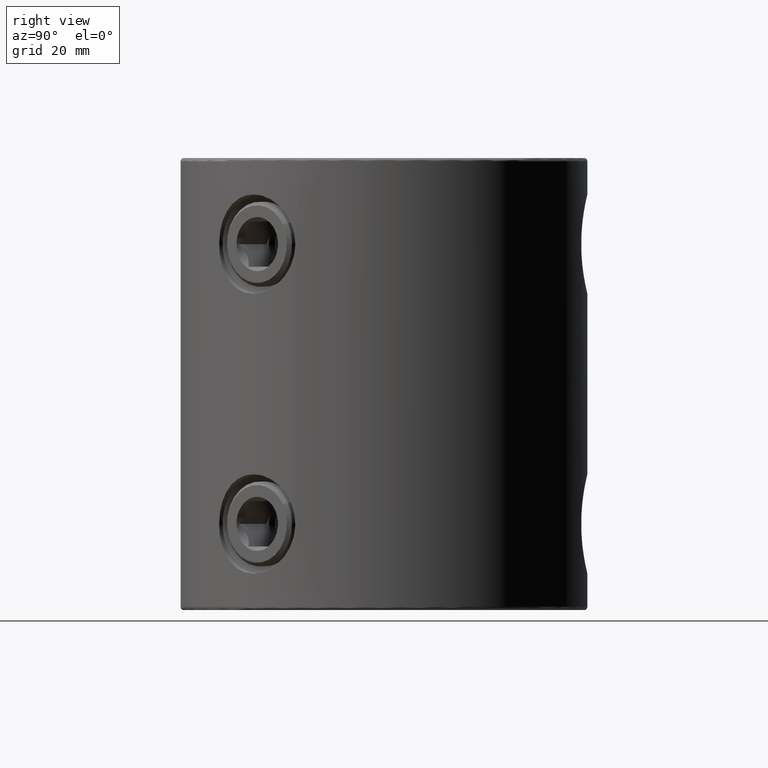
[diagram: clean part render]
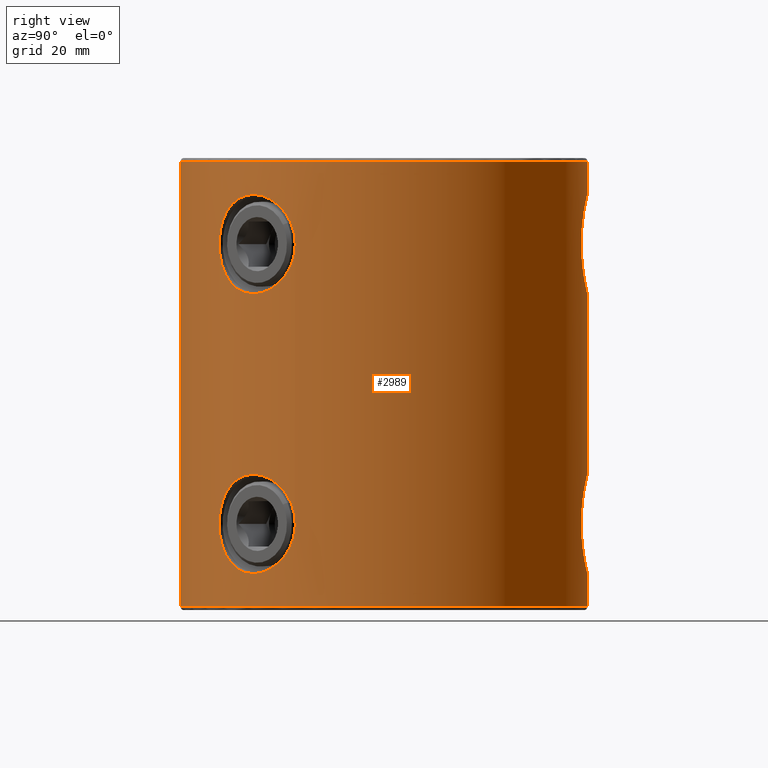
[diagram: same view with one face highlighted and labeled with its STEP entity id]
A machine part, right view. The second image highlights one B-rep face of the part: STEP entity #2989.
In plain terms, the highlighted cylindrical surface (partial cylindrical patch) has radius 45 mm, axis along (-0, 0, -1).
Its self-contained STEP definition (entity closure, byte-faithful):
#1135=VERTEX_POINT('NONE',#3245);
#1143=VERTEX_POINT('NONE',#3254);
#1265=EDGE_CURVE('NONE',#1143,#1507,#3395,.T.);
#1507=VERTEX_POINT('NONE',#3660);
#1539=EDGE_CURVE('NONE',#2419,#1135,#3694,.T.);
#1541=EDGE_CURVE('NONE',#1143,#2991,#3696,.T.);
#1633=EDGE_CURVE('NONE',#1135,#1971,#3797,.T.);
#1657=EDGE_CURVE('NONE',#1789,#2231,#3822,.T.);
#1697=VERTEX_POINT('NONE',#3868);
#1747=EDGE_CURVE('NONE',#3047,#2991,#3923,.T.);
#1789=VERTEX_POINT('NONE',#3970);
#1793=EDGE_CURVE('NONE',#3133,#1507,#3974,.T.);
#1823=EDGE_CURVE('NONE',#1697,#2403,#4006,.T.);
#1947=EDGE_CURVE('NONE',#2667,#2323,#4152,.T.);
#1971=VERTEX_POINT('NONE',#4184);
#2043=VERTEX_POINT('NONE',#4265);
#2099=EDGE_CURVE('NONE',#3047,#2043,#4328,.T.);
#2191=VERTEX_POINT('NONE',#4432);
#2231=VERTEX_POINT('NONE',#4476);
#2323=VERTEX_POINT('NONE',#4573);
#2403=VERTEX_POINT('NONE',#4666);
#2417=EDGE_CURVE('NONE',#2403,#1697,#4682,.T.);
#2419=VERTEX_POINT('NONE',#4684);
#2533=EDGE_CURVE('NONE',#1971,#2323,#4815,.T.);
#2667=VERTEX_POINT('NONE',#4970);
#2705=EDGE_CURVE('NONE',#3133,#2191,#5013,.T.);
#2709=EDGE_CURVE('NONE',#2667,#2191,#5017,.T.);
#2989=ADVANCED_FACE('NONE',(#5326,#5327,#5328),#5329,.T.);
#2991=VERTEX_POINT('NONE',#5331);
#3005=EDGE_CURVE('NONE',#2419,#2043,#5348,.T.);
#3047=VERTEX_POINT('NONE',#5396);
#3111=EDGE_CURVE('NONE',#2231,#1789,#5470,.T.);
#3133=VERTEX_POINT('NONE',#5493);
#3245=CARTESIAN_POINT('',(5.5107285922007E-015,-45.0,-0.75));
#3254=CARTESIAN_POINT('',(8.63334423383669E-021,45.0,-30.05));
#3395=LINE('',#5929,#5930);
#3660=CARTESIAN_POINT('',(-8.63329374673875E-021,45.0,-69.95));
#3694=CIRCLE('',#6590,45.0);
#3696=B_SPLINE_CURVE_WITH_KNOTS('',3,(#6593,#6594,#6595,#6596,#6597,#6598,#6599,#6600,#6601,#6602,#6603,#6604,#6605,#6606,#6607,#6608,#6609,#6610,#6611,#6612,#6613,#6614,#6615,#6616,#6617,#6618,#6619,#6620,#6621,#6622,#6623,#6624,#6625,#6626,#6627,#6628,#6629,#6630,#6631,#6632,#6633,#6634,#6635,#6636,#6637,#6638,#6639),.UNSPECIFIED.,.F.,.F.,(4,2,2,2,2,2,2,2,2,2,1,2,2,2,2,2,2,2,2,2,2,2,2,4),(0.0345222304149053,0.0366792903185935,0.0388363502222816,0.0399148801741257,0.0409934101259698,0.0431504700296579,0.044228999981502,0.0453075299333461,0.0474645898370343,0.0485431197888783,0.0496216497407224,0.0507001796925665,0.0517787096444106,0.0539357695480988,0.056092829451787,0.0582498893554751,0.0593284193073192,0.0604069492591633,0.0614854792110074,0.0625640091628514,0.0647210690665396,0.0657995990183837,0.0668781289702278,0.069035188873916),.UNSPECIFIED.);
#3797=LINE('',#6854,#6855);
#3822=B_SPLINE_CURVE_WITH_KNOTS('',3,(#6887,#6888,#6889,#6890,#6891,#6892,#6893,#6894,#6895,#6896,#6897,#6898,#6899,#6900,#6901,#6902,#6903,#6904,#6905,#6906,#6907,#6908,#6909,#6910,#6911,#6912,#6913,#6914,#6915,#6916,#6917,#6918,#6919,#6920,#6921,#6922,#6923,#6924,#6925,#6926,#6927,#6928,#6929,#6930,#6931,#6932,#6933,#6934),.UNSPECIFIED.,.F.,.F.,(4,2,2,2,2,2,2,2,2,2,2,2,2,2,2,2,2,2,2,2,2,2,2,4),(0.0345222304149053,0.0366792903185934,0.0388363502222814,0.0399148801741255,0.0409934101259695,0.0431504700296576,0.0442289999815017,0.0453075299333457,0.0474645898370339,0.0485431197888779,0.049621649740722,0.0507001796925661,0.0517787096444102,0.0539357695480984,0.0560928294517866,0.0582498893554748,0.0593284193073189,0.060406949259163,0.0614854792110071,0.0625640091628512,0.0647210690665395,0.0657995990183836,0.0668781289702277,0.069035188873916),.UNSPECIFIED.);
#3868=CARTESIAN_POINT('',(34.4719999403539,-28.9254424358944,-30.05));
#3923=LINE('',#7142,#7143);
#3970=CARTESIAN_POINT('',(34.4719999403541,-28.9254424358944,-69.9500000000002));
#3974=B_SPLINE_CURVE_WITH_KNOTS('',3,(#7209,#7210,#7211,#7212,#7213,#7214,#7215,#7216,#7217,#7218,#7219,#7220,#7221,#7222,#7223,#7224,#7225,#7226,#7227,#7228,#7229,#7230,#7231,#7232,#7233,#7234,#7235,#7236,#7237,#7238,#7239,#7240,#7241,#7242,#7243,#7244,#7245,#7246,#7247,#7248,#7249,#7250,#7251,#7252,#7253,#7254,#7255,#7256,#7257,#7258),.UNSPECIFIED.,.F.,.F.,(4,2,2,2,2,2,2,2,2,2,2,2,2,2,2,2,2,2,2,2,2,2,2,2,4),(5.67535717560836E-019,0.00215763940093158,0.00323645910139737,0.00431527880186317,0.00647291820279475,0.00755173790326054,0.00863055760372633,0.0107881970046579,0.0118670167051238,0.0129458364055896,0.0140246561060554,0.0151034758065212,0.0172611152074528,0.0194187546083844,0.0215763940093159,0.0226552137097817,0.0237340334102475,0.0248128531107133,0.0258916728111791,0.0280493122121107,0.0291281319125765,0.0302069516130423,0.0323645910139739,0.0334434107144397,0.0345222304149055),.UNSPECIFIED.);
#4006=B_SPLINE_CURVE_WITH_KNOTS('',3,(#7353,#7354,#7355,#7356,#7357,#7358,#7359,#7360,#7361,#7362,#7363,#7364,#7365,#7366,#7367,#7368,#7369,#7370,#7371,#7372,#7373,#7374,#7375,#7376,#7377,#7378,#7379,#7380,#7381,#7382,#7383,#7384,#7385,#7386,#7387,#7388,#7389,#7390,#7391,#7392,#7393,#7394,#7395,#7396,#7397,#7398,#7399,#7400),.UNSPECIFIED.,.F.,.F.,(4,2,2,2,2,2,2,2,2,2,2,2,2,2,2,2,2,2,2,2,2,2,2,4),(0.0345222304149053,0.0366792903185935,0.0388363502222817,0.0399148801741257,0.0409934101259698,0.043150470029658,0.0442289999815021,0.0453075299333462,0.0474645898370343,0.0485431197888784,0.0496216497407225,0.0507001796925666,0.0517787096444106,0.0539357695480988,0.056092829451787,0.0582498893554752,0.0593284193073193,0.0604069492591634,0.0614854792110074,0.0625640091628515,0.0647210690665397,0.0657995990183838,0.0668781289702278,0.069035188873916),.UNSPECIFIED.);
#4152=LINE('',#7647,#7648);
#4184=CARTESIAN_POINT('',(5.5107285922007E-015,-45.0,-99.25));
#4265=CARTESIAN_POINT('',(-4.22551013123065E-017,45.0,-1.7));
#4328=B_SPLINE_CURVE_WITH_KNOTS('',3,(#8091,#8092,#8093,#8094,#8095,#8096,#8097,#8098,#8099,#8100,#8101,#8102,#8103,#8104,#8105,#8106,#8107,#8108,#8109,#8110,#8111,#8112,#8113,#8114,#8115,#8116,#8117,#8118,#8119,#8120),.UNSPECIFIED.,.F.,.F.,(4,2,2,2,2,2,2,2,2,2,2,2,2,2,4),(0.00781764521475096,0.00830613643865219,0.00879462766255342,0.00977161011035588,0.0102601013342571,0.0107485925581583,0.0112370837820596,0.0117255750059608,0.012214066229862,0.0127025574537633,0.0131910486776645,0.0136795399015657,0.014168031125467,0.0146565223493682,0.0156335047971706),.UNSPECIFIED.);
#4432=CARTESIAN_POINT('',(2.07194240778304E-015,45.0,-93.3));
#4476=CARTESIAN_POINT('',(34.4719999403539,-28.9254424358944,-91.9500000000002));
#4573=CARTESIAN_POINT('',(5.23722504166407E-015,45.0,-99.25));
#4666=CARTESIAN_POINT('',(34.4719999403539,-28.9254424358944,-8.05));
#4682=B_SPLINE_CURVE_WITH_KNOTS('',3,(#8832,#8833,#8834,#8835,#8836,#8837,#8838,#8839,#8840,#8841,#8842,#8843,#8844,#8845,#8846,#8847,#8848,#8849,#8850,#8851,#8852,#8853,#8854,#8855,#8856,#8857,#8858,#8859,#8860,#8861,#8862,#8863,#8864,#8865,#8866,#8867,#8868,#8869,#8870,#8871,#8872,#8873,#8874,#8875,#8876,#8877,#8878,#8879,#8880,#8881),.UNSPECIFIED.,.F.,.F.,(4,2,2,2,2,2,2,2,2,2,2,2,2,2,2,2,2,2,2,2,2,2,2,2,4),(0.0,0.00215763940093155,0.00323645910139734,0.00431527880186313,0.0064729182027947,0.00755173790326048,0.00863055760372627,0.0107881970046579,0.0118670167051236,0.0129458364055894,0.0140246561060552,0.015103475806521,0.0172611152074526,0.0194187546083842,0.0215763940093158,0.0226552137097816,0.0237340334102474,0.0248128531107132,0.025891672811179,0.0280493122121106,0.0291281319125763,0.0302069516130421,0.0323645910139737,0.0334434107144395,0.0345222304149053),.UNSPECIFIED.);
#4684=CARTESIAN_POINT('',(0.0,45.0,-0.75));
#4815=CIRCLE('',#9131,45.0);
#4970=CARTESIAN_POINT('',(9.47303618034652E-024,45.0,-98.3));
#5013=LINE('',#9529,#9530);
#5017=B_SPLINE_CURVE_WITH_KNOTS('',3,(#9535,#9536,#9537,#9538,#9539,#9540,#9541,#9542,#9543,#9544,#9545,#9546,#9547,#9548,#9549,#9550,#9551,#9552,#9553,#9554,#9555,#9556,#9557,#9558,#9559,#9560,#9561,#9562,#9563,#9564),.UNSPECIFIED.,.F.,.F.,(4,2,2,2,2,2,2,2,2,2,2,2,2,2,4),(0.00781764521475095,0.00830613643865218,0.00879462766255342,0.00977161011035588,0.0102601013342571,0.0107485925581583,0.0112370837820596,0.0117255750059608,0.012214066229862,0.0127025574537633,0.0131910486776645,0.0136795399015657,0.014168031125467,0.0146565223493682,0.0156335047971706),.UNSPECIFIED.);
#5326=FACE_OUTER_BOUND('',#10196,.T.);
#5327=FACE_BOUND('',#10197,.T.);
#5328=FACE_BOUND('',#10198,.T.);
#5329=CYLINDRICAL_SURFACE('',#10199,45.0);
#5331=CARTESIAN_POINT('',(5.8432583428481E-016,45.0,-8.05));
#5348=LINE('',#10223,#10224);
#5396=CARTESIAN_POINT('',(9.4759944087411E-024,45.0,-6.7));
#5470=B_SPLINE_CURVE_WITH_KNOTS('',3,(#10397,#10398,#10399,#10400,#10401,#10402,#10403,#10404,#10405,#10406,#10407,#10408,#10409,#10410,#10411,#10412,#10413,#10414,#10415,#10416,#10417,#10418,#10419,#10420,#10421,#10422,#10423,#10424,#10425,#10426,#10427,#10428,#10429,#10430,#10431,#10432,#10433,#10434,#10435,#10436,#10437,#10438,#10439,#10440,#10441,#10442,#10443,#10444,#10445,#10446),.UNSPECIFIED.,.F.,.F.,(4,2,2,2,2,2,2,2,2,2,2,2,2,2,2,2,2,2,2,2,2,2,2,2,4),(0.0,0.00215763940093154,0.0032364591013973,0.00431527880186307,0.00647291820279461,0.00755173790326038,0.00863055760372615,0.0107881970046577,0.0118670167051235,0.0129458364055893,0.0140246561060551,0.0151034758065208,0.0172611152074524,0.019418754608384,0.0215763940093157,0.0226552137097815,0.0237340334102473,0.0248128531107131,0.0258916728111788,0.0280493122121105,0.0291281319125763,0.0302069516130421,0.0323645910139737,0.0334434107144395,0.0345222304149053),.UNSPECIFIED.);
#5493=CARTESIAN_POINT('',(5.56285562795762E-014,45.0,-91.95));
#5929=CARTESIAN_POINT('',(0.0,45.0,-4.26817070397456));
#5930=VECTOR('',#10896,1000.0);
#6590=AXIS2_PLACEMENT_3D('',#11232,#11233,#11234);
#6593=CARTESIAN_POINT('',(8.63334423383669E-021,45.0,-30.05));
#6594=CARTESIAN_POINT('',(0.719330247699615,45.0,-30.05));
#6595=CARTESIAN_POINT('',(1.43629051265467,44.982760654931,-29.980136346232));
#6596=CARTESIAN_POINT('',(2.86530090541917,44.914382298958,-29.6952271796035));
#6597=CARTESIAN_POINT('',(3.5535818182684,44.8644035317224,-29.4848631782293));
#6598=CARTESIAN_POINT('',(4.54716924432522,44.7709047693092,-29.0725660479408));
#6599=CARTESIAN_POINT('',(4.87194093895305,44.7366386998675,-28.9188643412673));
#6600=CARTESIAN_POINT('',(5.50844745573264,44.6627323089683,-28.5782369054519));
#6601=CARTESIAN_POINT('',(5.82016522726181,44.6230486987017,-28.3910237740346));
#6602=CARTESIAN_POINT('',(6.71575315158255,44.5001331836698,-27.7915589734232));
#6603=CARTESIAN_POINT('',(7.26757519966142,44.4122461670756,-27.3383408545894));
#6604=CARTESIAN_POINT('',(8.02850646262193,44.278769164257,-26.5780571750476));
#6605=CARTESIAN_POINT('',(8.27212085447403,44.233768649672,-26.309611322336));
#6606=CARTESIAN_POINT('',(8.72966032987899,44.1457506778248,-25.7524600339987));
#6607=CARTESIAN_POINT('',(8.94323044523478,44.1028326487427,-25.4645458893942));
#6608=CARTESIAN_POINT('',(9.53959888490849,43.9790964763189,-24.5733261871743));
#6609=CARTESIAN_POINT('',(9.87850619076776,43.9032643665258,-23.9428203209449));
#6610=CARTESIAN_POINT('',(10.2956963542388,43.8066092414243,-22.9397018388093));
#6611=CARTESIAN_POINT('',(10.4184871106195,43.7774685125297,-22.5974928002309));
#6612=CARTESIAN_POINT('',(10.6281288734973,43.727045403137,-21.9087506869557));
#6613=CARTESIAN_POINT('',(10.8032219479849,43.6841567012478,-21.2124463961212));
#6614=CARTESIAN_POINT('',(10.9098523504518,43.6574906291479,-20.5010914655648));
#6615=CARTESIAN_POINT('',(10.9815601897097,43.6395085002406,-19.7820386259461));
#6616=CARTESIAN_POINT('',(10.999877770549,43.6348792716184,-19.4164969963214));
#6617=CARTESIAN_POINT('',(11.0002426050503,43.6347872997332,-18.3280673914025));
#6618=CARTESIAN_POINT('',(10.9293821699366,43.6528292210319,-17.6122878308487));
#6619=CARTESIAN_POINT('',(10.6487216385376,43.7221410852904,-16.1998880087278));
#6620=CARTESIAN_POINT('',(10.4354417510084,43.7742093508509,-15.4978856852223));
#6621=CARTESIAN_POINT('',(9.88488436905951,43.9018098697666,-14.1709609907011));
#6622=CARTESIAN_POINT('',(9.547435642725,43.9774240833338,-13.5394229400978));
#6623=CARTESIAN_POINT('',(8.94660781262788,44.1021546836021,-12.6399917809491));
#6624=CARTESIAN_POINT('',(8.73026915702205,44.1456243049571,-12.3484216106944));
#6625=CARTESIAN_POINT('',(8.27496229039241,44.2332312172766,-11.7937095183115));
#6626=CARTESIAN_POINT('',(8.03494197848671,44.2775936154738,-11.5288890536451));
#6627=CARTESIAN_POINT('',(7.53045363131597,44.3661792030967,-11.0238134477432));
#6628=CARTESIAN_POINT('',(7.26598564816794,44.4104045600817,-10.7835586302319));
#6629=CARTESIAN_POINT('',(6.71214412420527,44.4974797250968,-10.3278602616621));
#6630=CARTESIAN_POINT('',(6.42115905218598,44.5405468597695,-10.1113787741625));
#6631=CARTESIAN_POINT('',(5.52164313015567,44.6640554552134,-9.50891048605808));
#6632=CARTESIAN_POINT('',(4.89073400617161,44.7383803224965,-9.17099491168845));
#6633=CARTESIAN_POINT('',(3.89795385371461,44.8320916755417,-8.7575532103482));
#6634=CARTESIAN_POINT('',(3.55923626454504,44.8603693189134,-8.63542683525977));
#6635=CARTESIAN_POINT('',(2.86560205341825,44.910012503757,-8.42362611884821));
#6636=CARTESIAN_POINT('',(2.51209277474105,44.9312287344595,-8.3345880481678));
#6637=CARTESIAN_POINT('',(1.44873686977096,44.9822727779629,-8.12187961689367));
#6638=CARTESIAN_POINT('',(0.729578279227872,45.0,-8.05));
#6639=CARTESIAN_POINT('',(5.8432583428481E-016,45.0,-8.05));
#6854=CARTESIAN_POINT('',(5.5107285922007E-015,-45.0,-4.26817070397456));
#6855=VECTOR('',#11345,1000.0);
#6887=CARTESIAN_POINT('',(34.4719999403541,-28.9254424358944,-69.9500000000002));
#6888=CARTESIAN_POINT('',(34.9343765108481,-28.3744034968768,-69.9500000000003));
#6889=CARTESIAN_POINT('',(35.3820235813057,-27.8140988325613,-70.0198636537682));
#6890=CARTESIAN_POINT('',(36.2481928962653,-26.6754606020347,-70.3047728203968));
#6891=CARTESIAN_POINT('',(36.6523253821138,-26.1160811011152,-70.5151368217709));
#6892=CARTESIAN_POINT('',(37.2193668613383,-25.2948491286312,-70.9274339520595));
#6893=CARTESIAN_POINT('',(37.4018767505386,-25.0240337718095,-71.081135658733));
#6894=CARTESIAN_POINT('',(37.75439967295,-24.4889353792748,-71.4217630945484));
#6895=CARTESIAN_POINT('',(37.9243685850805,-24.2246375795865,-71.6089762259657));
#6896=CARTESIAN_POINT('',(38.4058826589554,-23.4595688567354,-72.2084410265771));
#6897=CARTESIAN_POINT('',(38.693261673528,-22.980355957895,-72.6616591454108));
#6898=CARTESIAN_POINT('',(39.0801295448888,-22.3116514287186,-73.4219428249527));
#6899=CARTESIAN_POINT('',(39.2022494633773,-22.0961062043718,-73.6903886776643));
#6900=CARTESIAN_POINT('',(39.4289244908819,-21.6890337699971,-74.2475399660016));
#6901=CARTESIAN_POINT('',(39.533327597144,-21.4978423925864,-74.5354541106061));
#6902=CARTESIAN_POINT('',(39.8218784336763,-20.9614615848188,-75.426673812826));
#6903=CARTESIAN_POINT('',(39.9816330843979,-20.6530995858415,-76.0571796790554));
#6904=CARTESIAN_POINT('',(40.1757556308771,-20.2713846625626,-77.0602981611909));
#6905=CARTESIAN_POINT('',(40.2323609142246,-20.1585901865001,-77.4025071997694));
#6906=CARTESIAN_POINT('',(40.3284896991202,-19.9655839290425,-78.0912493130446));
#6907=CARTESIAN_POINT('',(40.3683362026541,-19.8847352275876,-78.4394014584619));
#6908=CARTESIAN_POINT('',(40.4322394068304,-19.7544749206484,-79.1432311639861));
#6909=CARTESIAN_POINT('',(40.4562960113576,-19.7050622781105,-79.4989085344355));
#6910=CARTESIAN_POINT('',(40.4886138120252,-19.6385721966616,-80.2179613740543));
#6911=CARTESIAN_POINT('',(40.4968419311661,-19.6215645048475,-80.583503003679));
#6912=CARTESIAN_POINT('',(40.4970059877114,-19.6212259070169,-81.6719326085978));
#6913=CARTESIAN_POINT('',(40.4652786915575,-19.6871052730384,-82.3877121691515));
#6914=CARTESIAN_POINT('',(40.3379695479037,-19.9466565210691,-83.8001119912725));
#6915=CARTESIAN_POINT('',(40.2407624842999,-20.1435072297001,-84.502114314778));
#6916=CARTESIAN_POINT('',(39.9846186892162,-20.6472786853087,-85.8290390092991));
#6917=CARTESIAN_POINT('',(39.8256346771478,-20.954383286552,-86.4605770599025));
#6918=CARTESIAN_POINT('',(39.534979175629,-21.4948193914704,-87.3600082190512));
#6919=CARTESIAN_POINT('',(39.4292190301928,-21.6884861504338,-87.6515783893059));
#6920=CARTESIAN_POINT('',(39.2036642060792,-22.0935840832912,-88.2062904816888));
#6921=CARTESIAN_POINT('',(39.0833656921355,-22.3059659093594,-88.4711109463552));
#6922=CARTESIAN_POINT('',(38.8269473304819,-22.7493681224487,-88.976186552257));
#6923=CARTESIAN_POINT('',(38.6908291767188,-22.980389862826,-89.2164413697683));
#6924=CARTESIAN_POINT('',(38.4015301536792,-23.4606279218093,-89.6721397383382));
#6925=CARTESIAN_POINT('',(38.2474798939785,-23.7112184398125,-89.8886212258377));
#6926=CARTESIAN_POINT('',(37.7638952777989,-24.479677408222,-90.4910895139422));
#6927=CARTESIAN_POINT('',(37.4152908616315,-25.0107569405442,-90.8290050883118));
#6928=CARTESIAN_POINT('',(36.8489311417469,-25.8315071561972,-91.2424467896521));
#6929=CARTESIAN_POINT('',(36.6528696038152,-26.1091564019576,-91.3645731647405));
#6930=CARTESIAN_POINT('',(36.2450390131363,-26.6724210590713,-91.576373881152));
#6931=CARTESIAN_POINT('',(36.034060204527,-26.9568624078128,-91.6654119518325));
#6932=CARTESIAN_POINT('',(35.3896502100053,-27.8042507685852,-91.8781203831066));
#6933=CARTESIAN_POINT('',(34.940963818538,-28.3665530492716,-91.9500000000002));
#6934=CARTESIAN_POINT('',(34.4719999403539,-28.9254424358944,-91.9500000000002));
#7142=CARTESIAN_POINT('',(0.0,45.0,-4.26817070397456));
#7143=VECTOR('',#11482,1000.0);
#7209=CARTESIAN_POINT('',(5.56285562795762E-014,45.0,-91.95));
#7210=CARTESIAN_POINT('',(0.729774281481249,45.0,-91.95));
#7211=CARTESIAN_POINT('',(1.44681191386172,44.9822716560584,-91.8781011076419));
#7212=CARTESIAN_POINT('',(2.50416762925883,44.9316553389473,-91.6671968871439));
#7213=CARTESIAN_POINT('',(2.85356413882981,44.9107748280874,-91.579589431429));
#7214=CARTESIAN_POINT('',(3.54613773354189,44.8614024650181,-91.3690166018637));
#7215=CARTESIAN_POINT('',(3.88961134645255,44.832829797008,-91.2456678719603));
#7216=CARTESIAN_POINT('',(4.8878524096725,44.7387495908975,-90.8307040359444));
#7217=CARTESIAN_POINT('',(5.51866497170115,44.6643850617185,-90.492534471686));
#7218=CARTESIAN_POINT('',(6.41396843167999,44.541573254211,-89.8937081661195));
#7219=CARTESIAN_POINT('',(6.70530234966852,44.4985219998873,-89.67748333923));
#7220=CARTESIAN_POINT('',(7.26252383118433,44.4109816078907,-89.2195702813682));
#7221=CARTESIAN_POINT('',(7.52790745855223,44.3666132210178,-88.9785909215699));
#7222=CARTESIAN_POINT('',(8.28562918033814,44.2336002007251,-88.2204195647629));
#7223=CARTESIAN_POINT('',(8.73992612861225,44.1450143095189,-87.6683554109301));
#7224=CARTESIAN_POINT('',(9.34299104509125,44.0198894547868,-86.7671445204362));
#7225=CARTESIAN_POINT('',(9.52920933410032,43.9798162813893,-86.4566292283582));
#7226=CARTESIAN_POINT('',(9.86787664961629,43.9050689682389,-85.8237876871763));
#7227=CARTESIAN_POINT('',(10.0211451147087,43.8702236730301,-85.5002560682018));
#7228=CARTESIAN_POINT('',(10.2958210544091,43.8065742023652,-84.8389906803494));
#7229=CARTESIAN_POINT('',(10.4172294516982,43.7777685903941,-84.5012574452484));
#7230=CARTESIAN_POINT('',(10.6274951268186,43.7272002251788,-83.8111966414787));
#7231=CARTESIAN_POINT('',(10.7166911924386,43.7053527400544,-83.4567539277213));
#7232=CARTESIAN_POINT('',(10.9292903874983,43.6528570040086,-82.3907474097424));
#7233=CARTESIAN_POINT('',(10.9996994841353,43.6349242162074,-81.6751100630706));
#7234=CARTESIAN_POINT('',(11.0002986145109,43.6347731801946,-80.234036497828));
#7235=CARTESIAN_POINT('',(10.928041525064,43.6531675727897,-79.5018946426877));
#7236=CARTESIAN_POINT('',(10.6457896520613,43.7228577908129,-78.0888353099715));
#7237=CARTESIAN_POINT('',(10.4370691082433,43.7738330228479,-77.4017515404979));
#7238=CARTESIAN_POINT('',(10.02152118178,43.8701416737368,-76.4003040894705));
#7239=CARTESIAN_POINT('',(9.8654194496726,43.905623649427,-76.0711735428937));
#7240=CARTESIAN_POINT('',(9.52551990557694,43.9806179980632,-75.4369319752976));
#7241=CARTESIAN_POINT('',(9.34101920343859,44.020297442985,-75.1299340783829));
#7242=CARTESIAN_POINT('',(8.94340062837241,44.1027982324059,-74.5356884787684));
#7243=CARTESIAN_POINT('',(8.73028238445813,44.1456215245608,-74.2484412947545));
#7244=CARTESIAN_POINT('',(8.27503714019916,44.2332170504302,-73.6937971417169));
#7245=CARTESIAN_POINT('',(8.03152217976408,44.2782298312405,-73.4250701695528));
#7246=CARTESIAN_POINT('',(7.266757353868,44.4124101981507,-72.6606147713605));
#7247=CARTESIAN_POINT('',(6.71426378622565,44.500325073471,-72.2075308999442));
#7248=CARTESIAN_POINT('',(5.82229067747784,44.6227632349887,-71.61035561137));
#7249=CARTESIAN_POINT('',(5.51435031706509,44.6620091662343,-71.4251429254297));
#7250=CARTESIAN_POINT('',(4.87639221490023,44.7361589896872,-71.0833004162096));
#7251=CARTESIAN_POINT('',(4.54843599791174,44.7707824942015,-70.9279753356099));
#7252=CARTESIAN_POINT('',(3.5522796230705,44.8645322070823,-70.5145650266756));
#7253=CARTESIAN_POINT('',(2.86633918014593,44.9142168942802,-70.3054801217465));
#7254=CARTESIAN_POINT('',(1.80395877098914,44.9652246478664,-70.0929212637047));
#7255=CARTESIAN_POINT('',(1.44206073519534,44.9783374027655,-70.038903303226));
#7256=CARTESIAN_POINT('',(0.72012047881462,44.9956864730054,-69.9676051433972));
#7257=CARTESIAN_POINT('',(0.359761748402268,45.0,-69.95));
#7258=CARTESIAN_POINT('',(-8.63329374673875E-021,45.0,-69.95));
#7353=CARTESIAN_POINT('',(34.4719999403539,-28.9254424358944,-30.05));
#7354=CARTESIAN_POINT('',(34.0096233698598,-29.4764813749121,-30.05));
#7355=CARTESIAN_POINT('',(33.535564090416,-30.0146235644086,-29.980136346232));
#7356=CARTESIAN_POINT('',(32.564633056211,-31.0653562749549,-29.6952271796035));
#7357=CARTESIAN_POINT('',(32.0839286565329,-31.5604843112215,-29.4848631782293));
#7358=CARTESIAN_POINT('',(31.3736387625381,-32.2615165917049,-29.0725660479408));
#7359=CARTESIAN_POINT('',(31.1386302091712,-32.4882803387872,-28.9188643412673));
#7360=CARTESIAN_POINT('',(30.6728761266412,-32.9283665066285,-28.5782369054519));
#7361=CARTESIAN_POINT('',(30.4421083962555,-33.1416480403429,-28.3910237740346));
#7362=CARTESIAN_POINT('',(29.772276827854,-33.7486996229925,-27.7915589734232));
#7363=CARTESIAN_POINT('',(29.3502470919127,-34.1149271511948,-27.3383408545895));
#7364=CARTESIAN_POINT('',(28.7588805879651,-34.6120369531913,-26.5780571750476));
#7365=CARTESIAN_POINT('',(28.567815881206,-34.7697306311286,-26.309611322336));
#7366=CARTESIAN_POINT('',(28.206289497245,-35.063649342037,-25.7524600339987));
#7367=CARTESIAN_POINT('',(28.0361321556071,-35.1996663647955,-25.4645458893942));
#7368=CARTESIAN_POINT('',(27.5580065044786,-35.576975015555,-24.5733261871743));
#7369=CARTESIAN_POINT('',(27.2820703211231,-35.7878491333495,-23.9428203209449));
#7370=CARTESIAN_POINT('',(26.9398635316778,-36.0453066229724,-22.9397018388093));
#7371=CARTESIAN_POINT('',(26.8386120614541,-36.1206385000936,-22.5974928002309));
#7372=CARTESIAN_POINT('',(26.6652305910484,-36.2488220576323,-21.9087506869557));
#7373=CARTESIAN_POINT('',(26.5925294357597,-36.3021024329173,-21.5605985415384));
#7374=CARTESIAN_POINT('',(26.4753447505285,-36.3876542687548,-20.8567688360141));
#7375=CARTESIAN_POINT('',(26.4308601825974,-36.4199258147347,-20.5010914655648));
#7376=CARTESIAN_POINT('',(26.3709921620802,-36.4632985168689,-19.7820386259461));
#7377=CARTESIAN_POINT('',(26.3556716532153,-36.4743549870815,-19.4164969963214));
#7378=CARTESIAN_POINT('',(26.3553666875667,-36.4745753481355,-18.3280673914024));
#7379=CARTESIAN_POINT('',(26.4147358108288,-36.4318902290455,-17.6122878308487));
#7380=CARTESIAN_POINT('',(26.6482368913976,-36.2614445961142,-16.1998880087278));
#7381=CARTESIAN_POINT('',(26.8252171659922,-36.1315315594035,-15.4978856852223));
#7382=CARTESIAN_POINT('',(27.2768562979848,-35.791800168892,-14.1709609907011));
#7383=CARTESIAN_POINT('',(27.5516880063011,-35.5819033268431,-13.5394229400978));
#7384=CARTESIAN_POINT('',(28.0334418742648,-35.2018177907272,-12.6399917809491));
#7385=CARTESIAN_POINT('',(28.205801343468,-35.0640344997733,-12.3484216106944));
#7386=CARTESIAN_POINT('',(28.5655777443039,-34.7715618424396,-11.7937095183115));
#7387=CARTESIAN_POINT('',(28.7538433954923,-34.6162112161656,-11.5288890536451));
#7388=CARTESIAN_POINT('',(29.1459827514239,-34.286692439318,-11.0238134477432));
#7389=CARTESIAN_POINT('',(29.3498580831136,-34.1125257219485,-10.7835586302319));
#7390=CARTESIAN_POINT('',(29.7725639987402,-33.7442293373315,-10.3278602616621));
#7391=CARTESIAN_POINT('',(29.992596936835,-33.5490048604329,-10.1113787741625));
#7392=CARTESIAN_POINT('',(30.6654076994491,-32.9393254817056,-9.50891048605808));
#7393=CARTESIAN_POINT('',(31.127884418752,-32.5037961569458,-9.17099491168845));
#7394=CARTESIAN_POINT('',(31.8378182611515,-31.8035189345417,-8.7575532103482));
#7395=CARTESIAN_POINT('',(32.077203662222,-31.5622227263622,-8.63542683525977));
#7396=CARTESIAN_POINT('',(32.5610920246772,-31.0627781174941,-8.42362611884821));
#7397=CARTESIAN_POINT('',(32.8045759845537,-30.8056118291922,-8.3345880481678));
#7398=CARTESIAN_POINT('',(33.5271899908356,-30.0238444258444,-8.12187961689367));
#7399=CARTESIAN_POINT('',(34.0030360621698,-29.4843318225172,-8.05));
#7400=CARTESIAN_POINT('',(34.4719999403539,-28.9254424358944,-8.05));
#7647=CARTESIAN_POINT('',(0.0,45.0,-4.26817070397456));
#7648=VECTOR('',#11795,1000.0);
#8091=CARTESIAN_POINT('',(9.4759944087411E-024,45.0,-6.7));
#8092=CARTESIAN_POINT('',(0.163141661612381,45.0,-6.7));
#8093=CARTESIAN_POINT('',(0.325302236312641,44.9991128089694,-6.68418450232176));
#8094=CARTESIAN_POINT('',(0.647619494992442,44.9956282779672,-6.62024444555325));
#8095=CARTESIAN_POINT('',(0.805595149280661,44.9930400935359,-6.57224005991781));
#8096=CARTESIAN_POINT('',(1.25689511415095,44.9834500264745,-6.38546115447451));
#8097=CARTESIAN_POINT('',(1.53589616037977,44.9743737727874,-6.19931400915533));
#8098=CARTESIAN_POINT('',(1.88184433522431,44.9607826913128,-5.8538501379063));
#8099=CARTESIAN_POINT('',(1.98744300894383,44.956182462291,-5.72538151078815));
#8100=CARTESIAN_POINT('',(2.16914225523042,44.9477818493101,-5.45361092202802));
#8101=CARTESIAN_POINT('',(2.24598741343043,44.9439594707274,-5.31010482225676));
#8102=CARTESIAN_POINT('',(2.37155753428645,44.937508467084,-5.00777907824776));
#8103=CARTESIAN_POINT('',(2.41982545796993,44.9349025102821,-4.84883703214229));
#8104=CARTESIAN_POINT('',(2.48356967567849,44.9314244212405,-4.52928165355646));
#8105=CARTESIAN_POINT('',(2.4998638530846,44.930509464443,-4.36697710470828));
#8106=CARTESIAN_POINT('',(2.50013446427041,44.930494407239,-4.03712490054321));
#8107=CARTESIAN_POINT('',(2.48401279840148,44.9313997572325,-3.87411491796312));
#8108=CARTESIAN_POINT('',(2.4207436643379,44.9348528854654,-3.55461578816611));
#8109=CARTESIAN_POINT('',(2.37289362356957,44.937437796266,-3.39608642341875));
#8110=CARTESIAN_POINT('',(2.2475228413013,44.94388257505,-3.09295787559023));
#8111=CARTESIAN_POINT('',(2.17081679190248,44.94770035858,-2.94932049615614));
#8112=CARTESIAN_POINT('',(1.9897586059575,44.956079385982,-2.67766447346226));
#8113=CARTESIAN_POINT('',(1.88427995886589,44.9606805522001,-2.54890980198966));
#8114=CARTESIAN_POINT('',(1.65374912475742,44.9697500605988,-2.31805323196602));
#8115=CARTESIAN_POINT('',(1.5280336948104,44.974256276837,-2.21453780738744));
#8116=CARTESIAN_POINT('',(1.25529335019099,44.9826950418942,-2.03177821804686));
#8117=CARTESIAN_POINT('',(1.10957181000748,44.9865698167585,-1.95381307888988));
#8118=CARTESIAN_POINT('',(0.658540945278848,44.9961862577486,-1.76641314765448));
#8119=CARTESIAN_POINT('',(0.330354582640553,45.0,-1.7));
#8120=CARTESIAN_POINT('',(-4.22551013123065E-017,45.0,-1.7));
#8832=CARTESIAN_POINT('',(34.4719999403539,-28.9254424358944,-8.05));
#8833=CARTESIAN_POINT('',(34.9410898063579,-28.3664029028346,-8.05));
#8834=CARTESIAN_POINT('',(35.3884120127689,-27.8057246492165,-8.12189889235809));
#8835=CARTESIAN_POINT('',(36.0292928172033,-26.9632076375495,-8.33280311285611));
#8836=CARTESIAN_POINT('',(36.2378851651095,-26.6821326492828,-8.42041056857105));
#8837=CARTESIAN_POINT('',(36.6452414662136,-26.1198545523608,-8.63098339813627));
#8838=CARTESIAN_POINT('',(36.8441341152926,-25.83837234286,-8.75433212803973));
#8839=CARTESIAN_POINT('',(37.4137214831122,-25.0132017326826,-9.16929596405569));
#8840=CARTESIAN_POINT('',(37.7622334476762,-24.4821706769344,-9.50746552831405));
#8841=CARTESIAN_POINT('',(38.2436441159696,-23.7173865283235,-10.1062918338805));
#8842=CARTESIAN_POINT('',(38.3979307745901,-23.4665389864955,-10.32251666077));
#8843=CARTESIAN_POINT('',(38.6890460079221,-22.9834126876713,-10.7804297186319));
#8844=CARTESIAN_POINT('',(38.8256431591937,-22.7515975852877,-11.0214090784301));
#8845=CARTESIAN_POINT('',(39.2108034084904,-22.0856499495119,-11.7795804352372));
#8846=CARTESIAN_POINT('',(39.4349591282622,-21.6806963835003,-12.3316445890699));
#8847=CARTESIAN_POINT('',(39.7267505847479,-21.1382931491059,-13.2328554795639));
#8848=CARTESIAN_POINT('',(39.8157515618206,-20.9698831242626,-13.5433707716418));
#8849=CARTESIAN_POINT('',(39.9761829521632,-20.6624022623952,-14.1762123128237));
#8850=CARTESIAN_POINT('',(40.0480089777168,-20.5225936823896,-14.4997439317982));
#8851=CARTESIAN_POINT('',(40.1758089451248,-20.2712666140172,-15.1610093196506));
#8852=CARTESIAN_POINT('',(40.2317823796331,-20.1597464954614,-15.4987425547515));
#8853=CARTESIAN_POINT('',(40.328200935172,-19.9661689248543,-16.1888033585213));
#8854=CARTESIAN_POINT('',(40.3687989164097,-19.8837974816972,-16.5432460722786));
#8855=CARTESIAN_POINT('',(40.4652409779381,-19.6871934410186,-17.6092525902576));
#8856=CARTESIAN_POINT('',(40.4967617604208,-19.621729969989,-18.3248899369294));
#8857=CARTESIAN_POINT('',(40.4970311737046,-19.6211739254165,-19.765963502172));
#8858=CARTESIAN_POINT('',(40.464676134128,-19.688349754911,-20.4981053573123));
#8859=CARTESIAN_POINT('',(40.3366339316075,-19.9493632424463,-21.9111646900284));
#8860=CARTESIAN_POINT('',(40.2415202453914,-20.1420187027558,-22.5982484595021));
#8861=CARTESIAN_POINT('',(40.0481878938676,-20.5222528901697,-23.5996959105294));
#8862=CARTESIAN_POINT('',(39.9750284049267,-20.6646411289527,-23.9288264571062));
#8863=CARTESIAN_POINT('',(39.813994193482,-20.9732247240257,-24.5630680247023));
#8864=CARTESIAN_POINT('',(39.7257956464574,-21.1400659172052,-24.8700659216171));
#8865=CARTESIAN_POINT('',(39.5334106243124,-21.4976899023447,-25.4643115212316));
#8866=CARTESIAN_POINT('',(39.4292254027175,-21.6884742304257,-25.7515587052455));
#8867=CARTESIAN_POINT('',(39.2037014661735,-22.0935176387394,-26.3062028582831));
#8868=CARTESIAN_POINT('',(39.0816548574416,-22.3089945787795,-26.5749298304472));
#8869=CARTESIAN_POINT('',(38.6928616274787,-22.9810879012631,-27.3393852286394));
#8870=CARTESIAN_POINT('',(38.4050723094733,-23.4608331211775,-27.7924691000558));
#8871=CARTESIAN_POINT('',(37.925516120253,-24.2228258977217,-28.38964438863));
#8872=CARTESIAN_POINT('',(37.757639999603,-24.4839486979632,-28.5748570745703));
#8873=CARTESIAN_POINT('',(37.4043704962466,-25.0203155448453,-28.9166995837903));
#8874=CARTESIAN_POINT('',(37.2200874466812,-25.2938001421614,-29.07202466439));
#8875=CARTESIAN_POINT('',(36.6515869182193,-26.1171613514374,-29.4854349733244));
#8876=CARTESIAN_POINT('',(36.2487335790606,-26.6745589173723,-29.6945198782535));
#8877=CARTESIAN_POINT('',(35.6049228214716,-27.5211766782885,-29.9070787362953));
#8878=CARTESIAN_POINT('',(35.3823442011179,-27.806835373962,-29.961096696774));
#8879=CARTESIAN_POINT('',(34.931580108233,-28.3710254630161,-30.0323948566028));
#8880=CARTESIAN_POINT('',(34.703250334666,-28.6498489476841,-30.05));
#8881=CARTESIAN_POINT('',(34.4719999403539,-28.9254424358944,-30.05));
#9131=AXIS2_PLACEMENT_3D('',#12584,#12585,#12586);
#9529=CARTESIAN_POINT('',(0.0,45.0,-4.26817070397456));
#9530=VECTOR('',#12839,1000.0);
#9535=CARTESIAN_POINT('',(9.47303618034652E-024,45.0,-98.3));
#9536=CARTESIAN_POINT('',(0.16314166161238,45.0,-98.3));
#9537=CARTESIAN_POINT('',(0.32530223631264,44.9991128089694,-98.2841845023218));
#9538=CARTESIAN_POINT('',(0.64761949499244,44.9956282779672,-98.2202444455532));
#9539=CARTESIAN_POINT('',(0.805595149280657,44.9930400935359,-98.1722400599178));
#9540=CARTESIAN_POINT('',(1.25689511415095,44.9834500264745,-97.9854611544746));
#9541=CARTESIAN_POINT('',(1.53589616037976,44.9743737727874,-97.7993140091553));
#9542=CARTESIAN_POINT('',(1.8818443352243,44.9607826913128,-97.4538501379063));
#9543=CARTESIAN_POINT('',(1.98744300894383,44.956182462291,-97.3253815107882));
#9544=CARTESIAN_POINT('',(2.16914225523042,44.9477818493101,-97.053610922028));
#9545=CARTESIAN_POINT('',(2.24598741343042,44.9439594707274,-96.9101048222567));
#9546=CARTESIAN_POINT('',(2.37155753428644,44.937508467084,-96.6077790782477));
#9547=CARTESIAN_POINT('',(2.41982545796993,44.9349025102821,-96.4488370321423));
#9548=CARTESIAN_POINT('',(2.48356967567848,44.9314244212405,-96.1292816535565));
#9549=CARTESIAN_POINT('',(2.49986385308459,44.930509464443,-95.9669771047083));
#9550=CARTESIAN_POINT('',(2.5001344642704,44.930494407239,-95.6371249005432));
#9551=CARTESIAN_POINT('',(2.48401279840147,44.9313997572325,-95.4741149179631));
#9552=CARTESIAN_POINT('',(2.42074366433789,44.9348528854654,-95.1546157881661));
#9553=CARTESIAN_POINT('',(2.37289362356957,44.937437796266,-94.9960864234187));
#9554=CARTESIAN_POINT('',(2.2475228413013,44.94388257505,-94.6929578755902));
#9555=CARTESIAN_POINT('',(2.17081679190247,44.94770035858,-94.5493204961562));
#9556=CARTESIAN_POINT('',(1.9897586059575,44.956079385982,-94.2776644734622));
#9557=CARTESIAN_POINT('',(1.88427995886588,44.9606805522001,-94.1489098019897));
#9558=CARTESIAN_POINT('',(1.65374912475741,44.9697500605988,-93.918053231966));
#9559=CARTESIAN_POINT('',(1.5280336948104,44.974256276837,-93.8145378073875));
#9560=CARTESIAN_POINT('',(1.255293350191,44.9826950418942,-93.6317782180469));
#9561=CARTESIAN_POINT('',(1.10957181000748,44.9865698167585,-93.5538130788899));
#9562=CARTESIAN_POINT('',(0.658540945278847,44.9961862577486,-93.3664131476545));
#9563=CARTESIAN_POINT('',(0.33035458264055,45.0,-93.3));
#9564=CARTESIAN_POINT('',(2.07194240778304E-015,45.0,-93.3));
#10196=EDGE_LOOP('',(#13181,#13182,#13183,#13184,#13185,#13186,#13187,#13188,#13189,#13190,#13191,#13192));
#10197=EDGE_LOOP('',(#13193,#13194));
#10198=EDGE_LOOP('',(#13195,#13196));
#10199=AXIS2_PLACEMENT_3D('',#13197,#13198,#13199);
#10223=CARTESIAN_POINT('',(0.0,45.0,-4.26817070397456));
#10224=VECTOR('',#13233,1000.0);
#10397=CARTESIAN_POINT('',(34.4719999403539,-28.9254424358944,-91.9500000000002));
#10398=CARTESIAN_POINT('',(34.0029100743499,-29.4844819689542,-91.9500000000003));
#10399=CARTESIAN_POINT('',(33.5284264692146,-30.0223691029206,-91.8781011076422));
#10400=CARTESIAN_POINT('',(32.809996967872,-30.7998150316136,-91.6671968871441));
#10401=CARTESIAN_POINT('',(32.5694138213383,-31.0540465525509,-91.5795894314292));
#10402=CARTESIAN_POINT('',(32.0864146714885,-31.5528527629892,-91.369016601864));
#10403=CARTESIAN_POINT('',(31.843746155301,-31.7976026585448,-91.2456678719605));
#10404=CARTESIAN_POINT('',(31.1300195492845,-32.501826087113,-90.8307040359445));
#10405=CARTESIAN_POINT('',(30.6675745160351,-32.9372559469483,-90.4925344716862));
#10406=CARTESIAN_POINT('',(29.9980052423607,-33.5441562791813,-89.8937081661197));
#10407=CARTESIAN_POINT('',(29.7777602354523,-33.7396581952877,-89.6774833392302));
#10408=CARTESIAN_POINT('',(29.3525253404453,-34.1102447354669,-89.2195702813683));
#10409=CARTESIAN_POINT('',(29.1479518767454,-34.2850209391631,-88.9785909215701));
#10410=CARTESIAN_POINT('',(28.5590038573334,-34.7799703321967,-88.2204195647631));
#10411=CARTESIAN_POINT('',(28.1991266781671,-35.0710400716875,-87.6683554109303));
#10412=CARTESIAN_POINT('',(27.7156328223542,-35.4525858935107,-86.7671445204363));
#10413=CARTESIAN_POINT('',(27.5652361816828,-35.5694788396724,-86.4566292283584));
#10414=CARTESIAN_POINT('',(27.2902852635864,-35.7808664080391,-85.8237876871765));
#10415=CARTESIAN_POINT('',(27.1650731485058,-35.8758787400124,-85.500256068202));
#10416=CARTESIAN_POINT('',(26.9397565344771,-36.0453796261719,-84.8389906803496));
#10417=CARTESIAN_POINT('',(26.8396503420067,-36.1198679637987,-84.5012574452487));
#10418=CARTESIAN_POINT('',(26.6657565561261,-36.2484360972008,-83.8111966414789));
#10419=CARTESIAN_POINT('',(26.5916862857371,-36.3027209548763,-83.4567539277215));
#10420=CARTESIAN_POINT('',(26.4148160904381,-36.4318377781718,-82.3907474097426));
#10421=CARTESIAN_POINT('',(26.3558206830658,-36.4742473015898,-81.6751100630708));
#10422=CARTESIAN_POINT('',(26.3553198691856,-36.4746091780071,-80.2340364978282));
#10423=CARTESIAN_POINT('',(26.415856753226,-36.4310807238082,-79.5018946426879));
#10424=CARTESIAN_POINT('',(26.6506705642594,-36.2596592535962,-78.0888353099718));
#10425=CARTESIAN_POINT('',(26.8238828369498,-36.1325362883927,-77.4017515404981));
#10426=CARTESIAN_POINT('',(27.1647686021491,-35.8761141159728,-76.4003040894708));
#10427=CARTESIAN_POINT('',(27.2922896317067,-35.7793406258716,-76.071173542894));
#10428=CARTESIAN_POINT('',(27.5682218512275,-35.5671679069983,-75.4369319752979));
#10429=CARTESIAN_POINT('',(27.7172128348289,-35.4513376249286,-75.1299340783832));
#10430=CARTESIAN_POINT('',(28.0359963995515,-35.1997746102474,-74.5356884787686));
#10431=CARTESIAN_POINT('',(28.2057907111291,-35.0640428453728,-74.2484412947547));
#10432=CARTESIAN_POINT('',(28.5655187793418,-34.7716100744447,-73.6937971417171));
#10433=CARTESIAN_POINT('',(28.7565289692919,-34.6140004499695,-73.4250701695531));
#10434=CARTESIAN_POINT('',(29.3508984481492,-34.114406082112,-72.6606147713608));
#10435=CARTESIAN_POINT('',(29.7733811695678,-33.7476820473236,-72.2075308999445));
#10436=CARTESIAN_POINT('',(30.4405235053008,-33.1430927371322,-71.6103556113702));
#10437=CARTESIAN_POINT('',(30.6685278810422,-32.9324235335612,-71.4251429254299));
#10438=CARTESIAN_POINT('',(31.1354015048273,-32.4913818622311,-71.0833004162099));
#10439=CARTESIAN_POINT('',(31.3727308408617,-32.2624083843265,-70.9279753356102));
#10440=CARTESIAN_POINT('',(32.0848642625161,-31.5595694827532,-70.5145650266758));
#10441=CARTESIAN_POINT('',(32.563838958747,-31.0660453194623,-70.3054801217467));
#10442=CARTESIAN_POINT('',(33.2857981287175,-30.2850018625524,-70.092921263705));
#10443=CARTESIAN_POINT('',(33.52846665512,-30.0162005996349,-70.0389033032262));
#10444=CARTESIAN_POINT('',(34.005811065706,-29.4743140453603,-69.9676051433974));
#10445=CARTESIAN_POINT('',(34.2407495460419,-29.2010359241048,-69.9500000000002));
#10446=CARTESIAN_POINT('',(34.4719999403541,-28.9254424358944,-69.9500000000002));
#10896=DIRECTION('',(-0.0,-0.0,-1.0));
#11232=CARTESIAN_POINT('',(0.0,0.0,-0.75));
#11233=DIRECTION('',(0.0,0.0,-1.0));
#11234=DIRECTION('',(0.0,1.0,0.0));
#11345=DIRECTION('',(-0.0,-0.0,-1.0));
#11482=DIRECTION('',(-0.0,-0.0,-1.0));
#11795=DIRECTION('',(-0.0,-0.0,-1.0));
#12584=CARTESIAN_POINT('',(5.23722504166407E-015,0.0,-99.25));
#12585=DIRECTION('',(6.98296672221876E-015,-0.0,1.0));
#12586=DIRECTION('',(0.0,1.0,0.0));
#12839=DIRECTION('',(-0.0,-0.0,-1.0));
#13181=ORIENTED_EDGE('',*,*,#1539,.T.);
#13182=ORIENTED_EDGE('',*,*,#1633,.T.);
#13183=ORIENTED_EDGE('',*,*,#2533,.T.);
#13184=ORIENTED_EDGE('',*,*,#1947,.F.);
#13185=ORIENTED_EDGE('',*,*,#2709,.T.);
#13186=ORIENTED_EDGE('',*,*,#2705,.F.);
#13187=ORIENTED_EDGE('',*,*,#1793,.T.);
#13188=ORIENTED_EDGE('',*,*,#1265,.F.);
#13189=ORIENTED_EDGE('',*,*,#1541,.T.);
#13190=ORIENTED_EDGE('',*,*,#1747,.F.);
#13191=ORIENTED_EDGE('',*,*,#2099,.T.);
#13192=ORIENTED_EDGE('',*,*,#3005,.F.);
#13193=ORIENTED_EDGE('',*,*,#2417,.T.);
#13194=ORIENTED_EDGE('',*,*,#1823,.T.);
#13195=ORIENTED_EDGE('',*,*,#3111,.T.);
#13196=ORIENTED_EDGE('',*,*,#1657,.T.);
#13197=CARTESIAN_POINT('',(0.0,0.0,-4.26817070397456));
#13198=DIRECTION('',(-0.0,0.0,-1.0));
#13199=DIRECTION('',(0.0,1.0,0.0));
#13233=DIRECTION('',(-0.0,-0.0,-1.0));